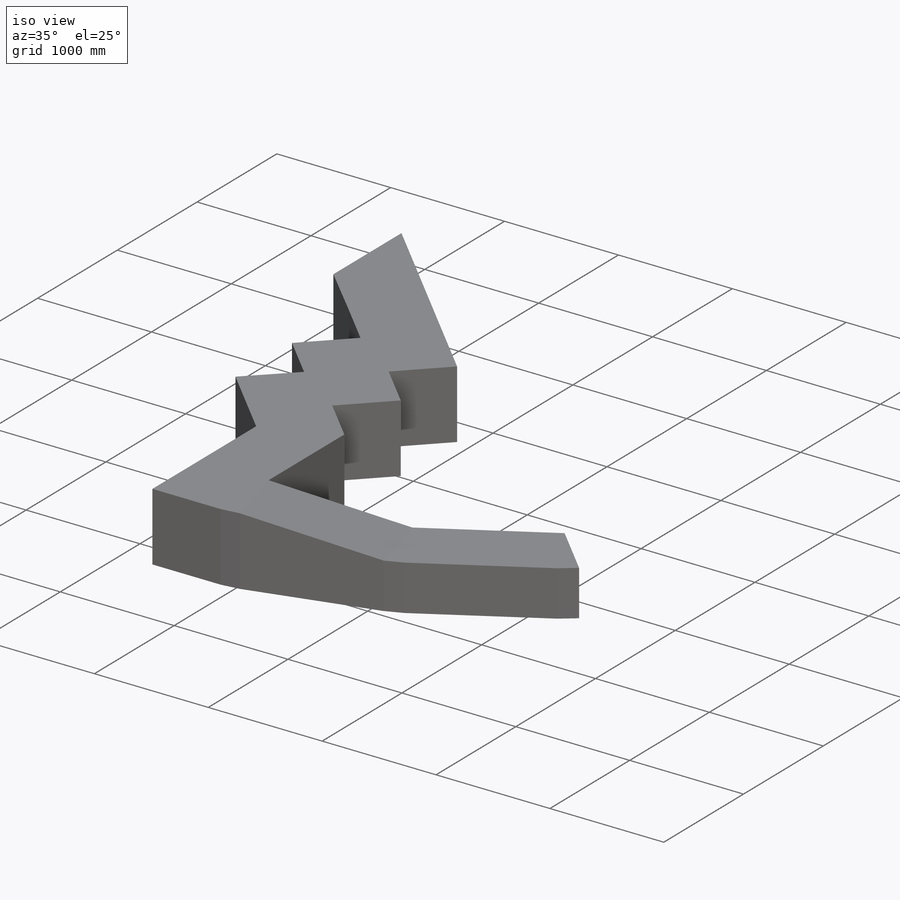
[diagram: iso view]
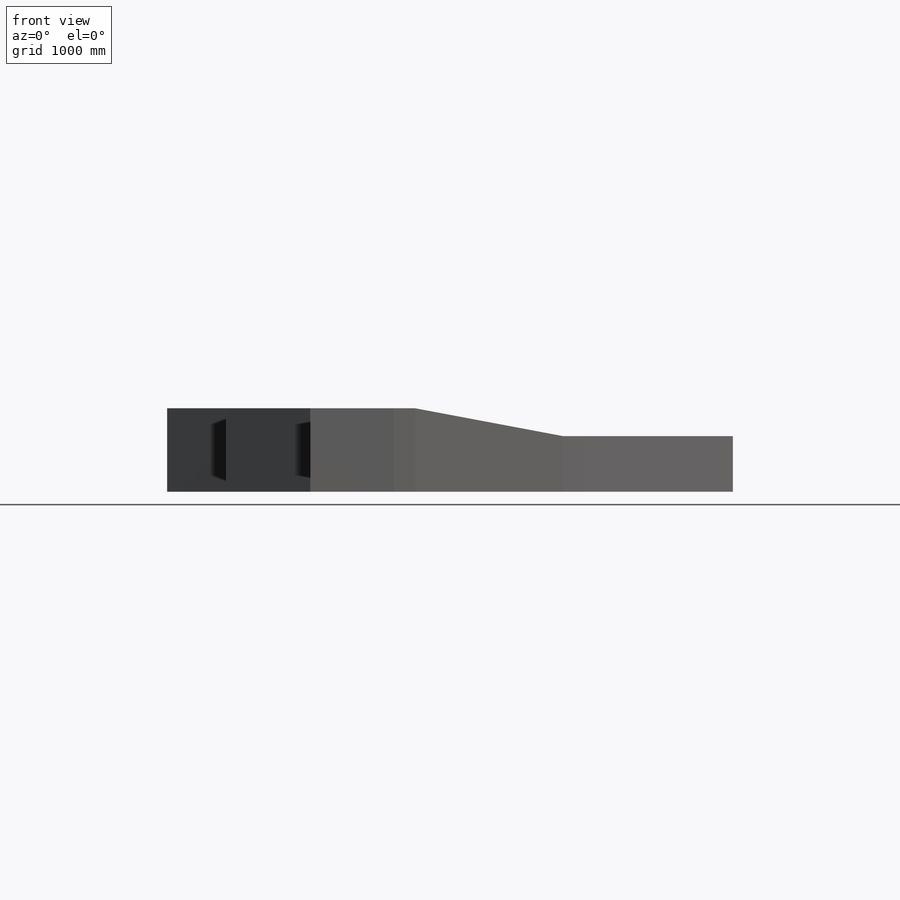
[diagram: front view]
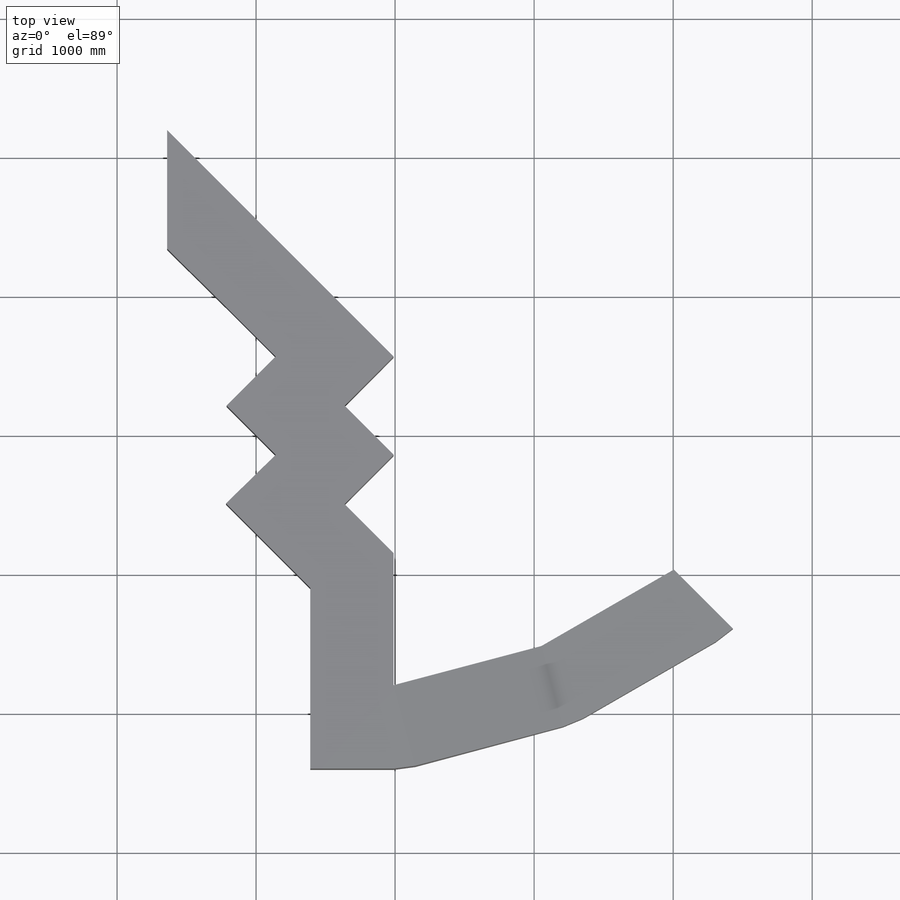
[diagram: top view]
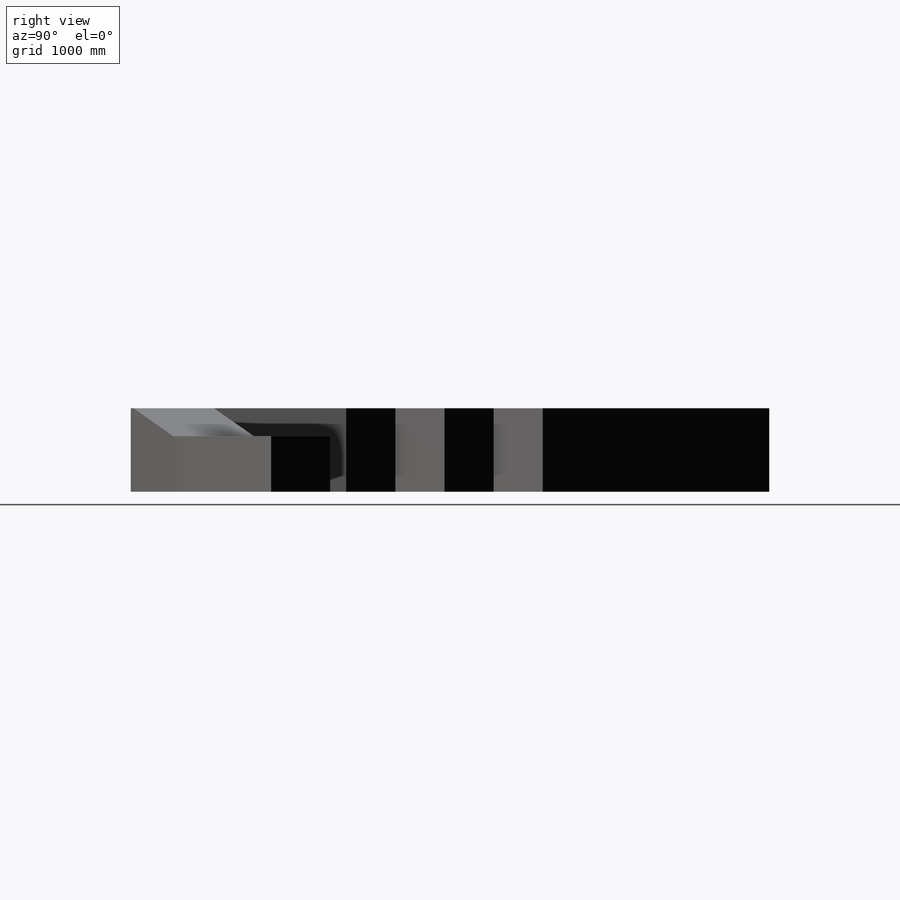
[diagram: right view]
SOLIDWORKS PART (.sldprt)
format: sldprt  version: not decoded by parser v0  size: 604,672 bytes
history: native  units: mm
features: sketch x26, cut_extrude x10, extrude x7, material x1, plane x1 (+13 scaffold rows collapsed)
feature tree (58):
  scaffold x13  (default folders/planes/origin — collapsed)
  material  "Material <not specified>"
  sketch  "Sketch1"  dims[c1.D1=1100.0mm c2.D1=165.0deg c3.D1=600.0mm c4.D1=105.0deg c5.D1=1100.0mm c6.D1=150.0deg c7.D1=1100.0mm c8.D1=150.0deg c9.D1=1100.0mm c10.D1=135.0deg c11.D1=1100.0mm c12.D1=135.0deg c13.D1=1100.0mm c14.D1=0.0deg]
  extrude  "Boss-Extrude1"  Depth=600mm
  plane  "Plane1"
  sketch  "Sketch7"  dims[c1.D1=160.0deg c2.D1=600.0mm c3.D1=0.0deg c4.D1=200.0mm]
  cut_extrude  "Cut-Extrude9"  [1 undecoded]
  sketch  "Sketch8"  dims[D1=200.0mm D5=10.0mm D6=10.0mm D7=5.0mm]
  sketch  "Sketch9"  dims[D1=200.0mm]
  sketch  "Sketch14"
  cut_extrude  "Cut-Extrude40"  Depth=400mm
  sketch  "Sketch17"  dims[D1=400.0mm]
  cut_extrude  "Cut-Extrude42"  [1 undecoded]
  sketch  "Sketch18"
  cut_extrude  "Cut-Extrude43"  Depth=200mm
  sketch  "Sketch19"
  cut_extrude  "Cut-Extrude44"  [1 undecoded]
  sketch  "Sketch20"
  cut_extrude  "Cut-Extrude45"  Depth=600mm
  sketch  "Sketch21"
  cut_extrude  "Cut-Extrude46"  Depth=600mm
  sketch  "Sketch22"  dims[D1=1301.0mm]
  extrude  "Boss-Extrude2"  Depth=600mm
  sketch  "Sketch23"  dims[D1=600.0mm]
  extrude  "Boss-Extrude3"  Depth=600mm
  sketch  "Sketch24"  dims[c1.D1=~854.32982mm c2.D1=45.0deg]
  extrude  "Boss-Extrude4"  Depth=600mm
  sketch  "Sketch27"
  extrude  "Boss-Extrude5"  [1 undecoded]
  sketch  "Sketch29"
  sketch  "Sketch30"
  extrude  "Split Line2"  [1 undecoded]
  sketch  "Sketch31"
  extrude  "Split Line3"  [1 undecoded]
  sketch  "Sketch32"  dims[D1=300.0mm]
  sketch  "Sketch33"
  sketch  "Sketch34"  dims[D1=300.0mm]
  sketch  "Sketch35"
  sketch  "Sketch36"
  sketch  "Sketch37"  dims[D1=500.0mm]
  sketch  "Sketch38"
  cut_extrude  "Cut-Extrude47"  Depth=500mm
  sketch  "Sketch39"
  cut_extrude  "Cut-Extrude48"  Depth=500mm
  sketch  "Sketch40"
  cut_extrude  "Cut-Extrude49"  Depth=500mm
decode coverage: 22 of 43 modeling features carry decoded parameters
note: ~ marks probable driven/reference dimensions
note: 6 parameter values undecoded
summary: no parameter record found for 6 features
note: suppression state not decoded; provenance and decode notes live in map.json
